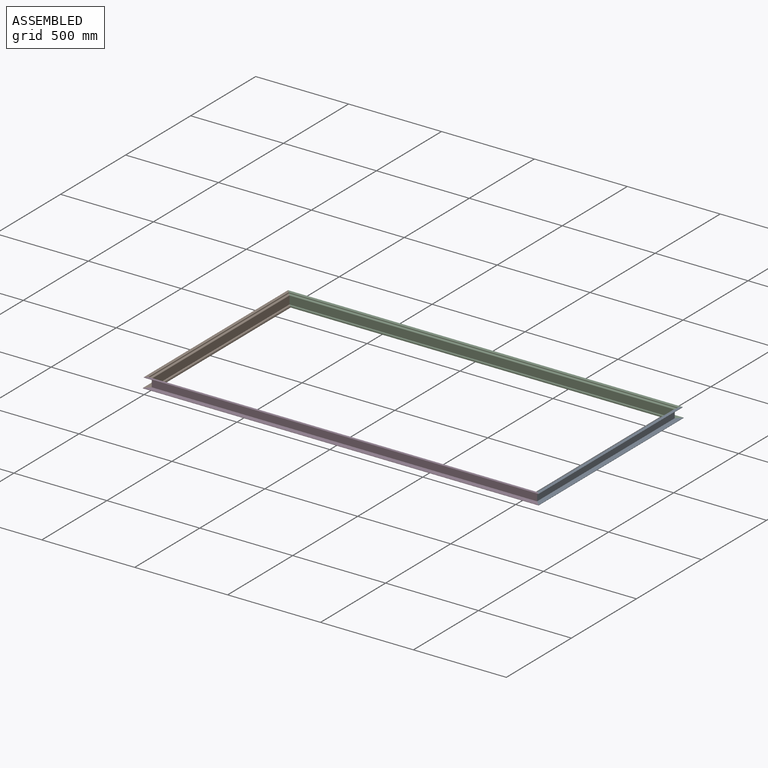
[diagram: assembled view]
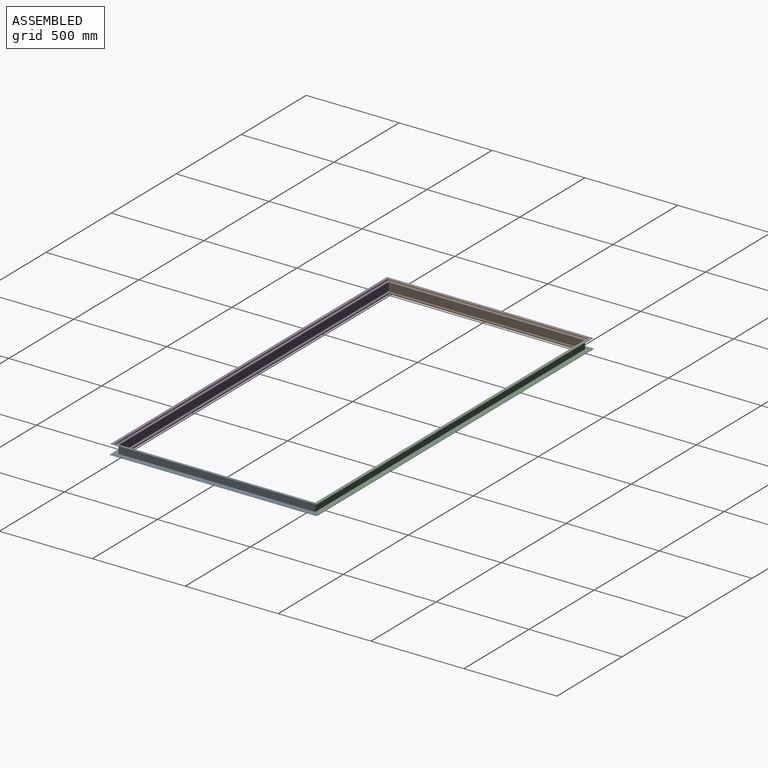
[diagram: assembled view, second angle]
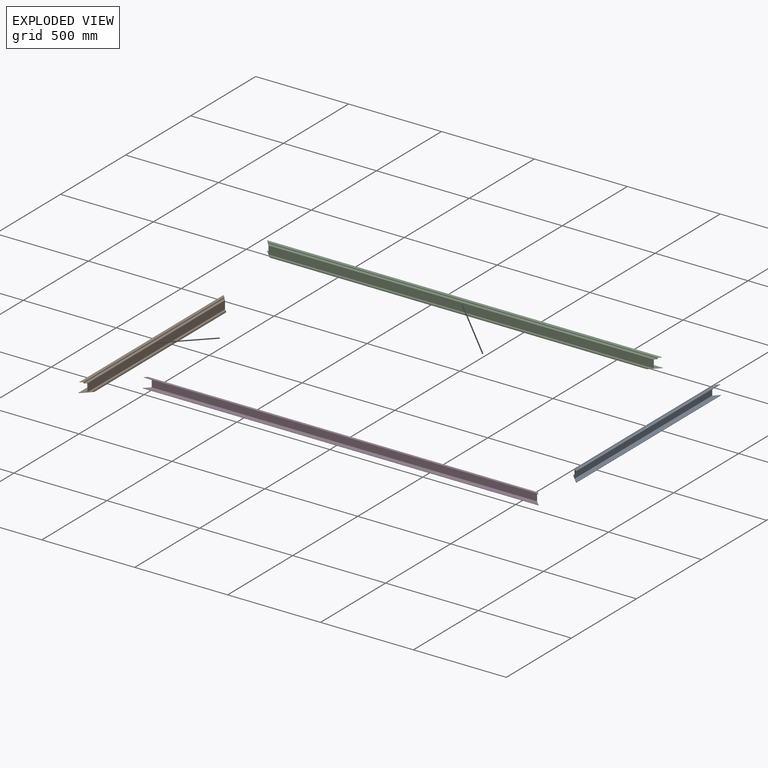
[diagram: exploded view]
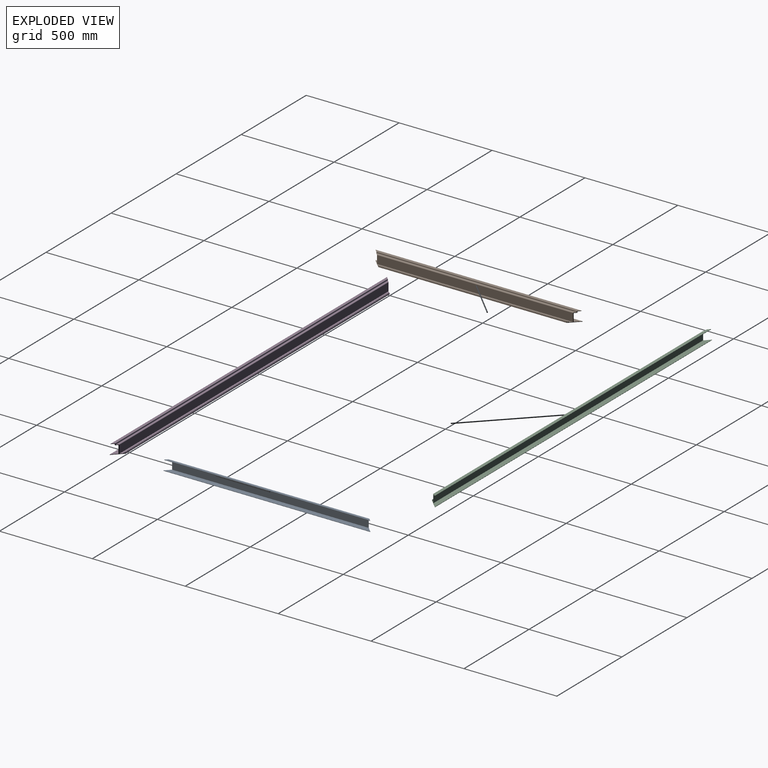
[diagram: exploded view, second angle]
ASSEMBLY  parts=4 mates=3
PART A: 28 faces, bbox 50x1114x54 mm
  f0: plane 1114x50mm, normal (0,0,-1), area 53200mm2, adj f22,f25,f26,f27
  f1: plane 1024x3mm, normal (0,0,1), area 3063mm2, adj f2,f24,f26,f27
  f2: plane 1024x3mm, normal (1,0,0), area 3072mm2, adj f1,f3,f26,f27
  f3: plane 1028x2mm, normal (0,0,1), area 2052mm2, adj f2,f4,f26,f27
  f4: plane 1028x3mm, normal (-1,0,0), area 3084mm2, adj f3,f5,f26,f27
  f5: plane 1054x13mm, normal (0,0,1), area 13533mm2, adj f4,f6,f26,f27
  f6: plane 1054x43mm, normal (1,0,0), area 45322mm2, adj f5,f7,f26,f27
  f7: cylinder r=2mm len=1058mm, axis (0,1,0), area 3315.8mm2, adj f6,f8,f26,f27
  f8: plane 1074x8mm, normal (0,0,1), area 8528mm2, adj f7,f9,f26,f27
  f9: cylinder r=2mm len=1078mm, axis (0,1,0), area 3382.1mm2, adj f8,f10,f26,f27
  f10: plane 1078x3mm, normal (1,0,0), area 3234mm2, adj f9,f11,f26,f27
  f11: cylinder r=2mm len=1082mm, axis (0,1,0), area 3391.2mm2, adj f10,f12,f26,f27
  f12: plane 1108x13mm, normal (0,0,1), area 14235mm2, adj f11,f13,f26,f27
  f13: plane 1108x2mm, normal (-1,0,0), area 2216mm2, adj f12,f14,f26,f27
  f14: plane 1108x11mm, normal (0,0,-1), area 12067mm2, adj f13,f15,f26,f27
  f15: cylinder r=2mm len=1086mm, axis (0,1,0), area 3403.8mm2, adj f14,f16,f26,f27
  f16: plane 1082x3mm, normal (-1,0,0), area 3246mm2, adj f15,f17,f26,f27
  f17: cylinder r=2mm len=1082mm, axis (0,1,0), area 3394.6mm2, adj f16,f18,f26,f27
  f18: plane 1078x8mm, normal (0,0,-1), area 8560mm2, adj f17,f19,f26,f27
  f19: cylinder r=2mm len=1062mm, axis (0,1,0), area 3328.4mm2, adj f18,f20,f26,f27
  f20: plane 1058x41mm, normal (-1,0,0), area 43378mm2, adj f19,f21,f26,f27
  f21: plane 1114x28mm, normal (0,0,1), area 30408mm2, adj f20,f25,f26,f27
  f22: plane 1014x5mm, normal (1,0,0), area 5070mm2, adj f0,f23,f26,f27
  f23: plane 1018x2mm, normal (0,0,1), area 2032mm2, adj f22,f24,f26,f27
  f24: plane 1018x3mm, normal (-1,0,0), area 3054mm2, adj f1,f23,f26,f27
  f25: plane 1114x2mm, normal (-1,0,0), area 2228mm2, adj f0,f21,f26,f27
  f26: plane 54x50mm, normal (0.71,0.71,0), area 376.2mm2, adj f0,f1,f2,f3,f4,f5,f6,f7
  f27: plane 54x50mm, normal (0.71,-0.71,0), area 376.2mm2, adj f0,f1,f2,f3,f4,f5,f6,f7
PART B: same geometry as A
PART C: 28 faces, bbox 50x2130x54 mm
  f0: plane 2130x50mm, normal (0,0,-1), area 104000mm2, adj f22,f25,f26,f27
  f1: plane 2040x3mm, normal (0,0,1), area 6111mm2, adj f2,f24,f26,f27
  f2: plane 2040x3mm, normal (1,0,0), area 6120mm2, adj f1,f3,f26,f27
  f3: plane 2044x2mm, normal (0,0,1), area 4084mm2, adj f2,f4,f26,f27
  f4: plane 2044x3mm, normal (-1,0,0), area 6132mm2, adj f3,f5,f26,f27
  f5: plane 2070x13mm, normal (0,0,1), area 26741mm2, adj f4,f6,f26,f27
  f6: plane 2070x43mm, normal (1,0,0), area 89010mm2, adj f5,f7,f26,f27
  f7: cylinder r=2mm len=2074mm, axis (0,1,0), area 6507.7mm2, adj f6,f8,f26,f27
  f8: plane 2090x8mm, normal (0,0,1), area 16656mm2, adj f7,f9,f26,f27
  f9: cylinder r=2mm len=2094mm, axis (0,1,0), area 6573.9mm2, adj f8,f10,f26,f27
  f10: plane 2094x3mm, normal (1,0,0), area 6282mm2, adj f9,f11,f26,f27
  f11: cylinder r=2mm len=2098mm, axis (0,1,0), area 6583.1mm2, adj f10,f12,f26,f27
  f12: plane 2124x13mm, normal (0,0,1), area 27443mm2, adj f11,f13,f26,f27
  f13: plane 2124x2mm, normal (-1,0,0), area 4248mm2, adj f12,f14,f26,f27
  f14: plane 2124x11mm, normal (0,0,-1), area 23243mm2, adj f13,f15,f26,f27
  f15: cylinder r=2mm len=2102mm, axis (0,1,0), area 6595.6mm2, adj f14,f16,f26,f27
  f16: plane 2098x3mm, normal (-1,0,0), area 6294mm2, adj f15,f17,f26,f27
  f17: cylinder r=2mm len=2098mm, axis (0,1,0), area 6586.5mm2, adj f16,f18,f26,f27
  f18: plane 2094x8mm, normal (0,0,-1), area 16688mm2, adj f17,f19,f26,f27
  f19: cylinder r=2mm len=2078mm, axis (0,1,0), area 6520.2mm2, adj f18,f20,f26,f27
  f20: plane 2074x41mm, normal (-1,0,0), area 85034mm2, adj f19,f21,f26,f27
  f21: plane 2130x28mm, normal (0,0,1), area 58856mm2, adj f20,f25,f26,f27
  f22: plane 2030x5mm, normal (1,0,0), area 10150mm2, adj f0,f23,f26,f27
  f23: plane 2034x2mm, normal (0,0,1), area 4064mm2, adj f22,f24,f26,f27
  f24: plane 2034x3mm, normal (-1,0,0), area 6102mm2, adj f1,f23,f26,f27
  f25: plane 2130x2mm, normal (-1,0,0), area 4260mm2, adj f0,f21,f26,f27
  f26: plane 54x50mm, normal (0.71,0.71,0), area 376.2mm2, adj f0,f1,f2,f3,f4,f5,f6,f7
  f27: plane 54x50mm, normal (0.71,-0.71,0), area 376.2mm2, adj f0,f1,f2,f3,f4,f5,f6,f7
PART D: same geometry as C
PLACE A rot(axis=(0,0,-1),180deg) t=(2133,-1013.4,0)mm
PLACE B t=(3,100.6,0)mm
PLACE C rot(axis=(0,0,-1),90deg) t=(2133,100.6,0)mm
PLACE D rot(axis=(0,0,1),90deg) t=(3,-1013.4,0)mm
MATE fastened A.f27 <-> C.f26  axis (-0.71,0.71,0) through (2107.89,75.49,20.81)mm
MATE fastened D.f27 <-> A.f26  axis (0.71,0.71,0) through (2107.89,-988.29,20.81)mm
MATE fastened B.f26 <-> C.f27  axis (0.71,0.71,0) through (28.11,75.49,20.81)mm
